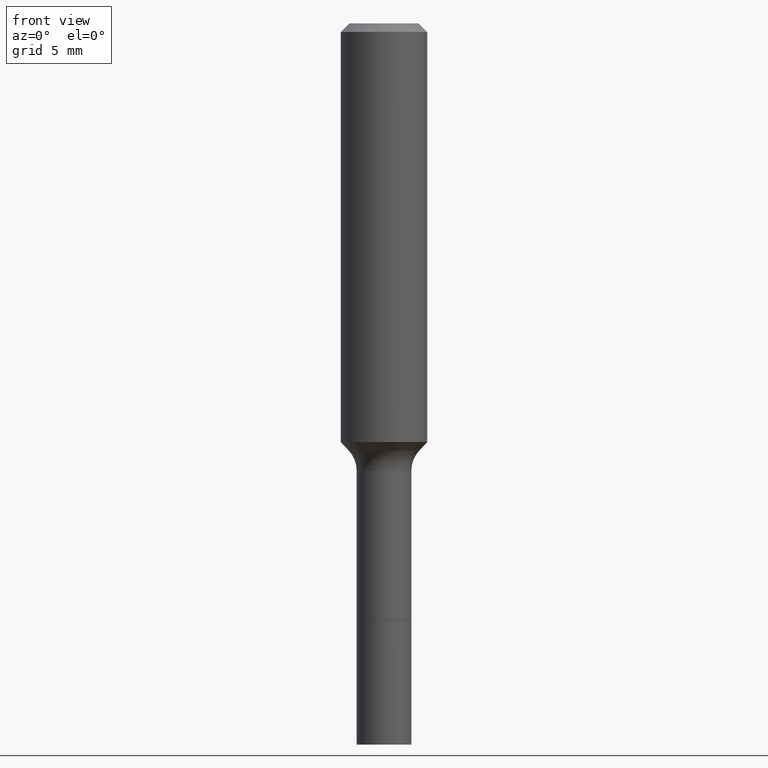
[diagram: clean part render]
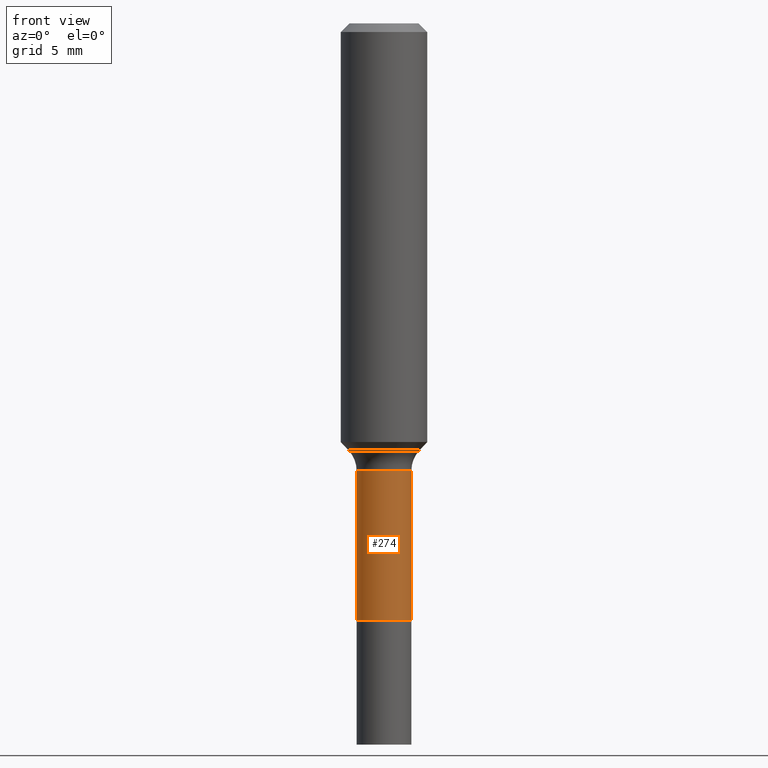
[diagram: same view with one face highlighted and labeled with its STEP entity id]
A machine part, front view. The second image highlights one B-rep face of the part: STEP entity #274.
In plain terms, the highlighted cylindrical surface (edge-blend (fillet) strip) has radius 1.8999 mm, axis along (-0, 0, 1).
Its self-contained STEP definition (entity closure, byte-faithful):
#1 = CARTESIAN_POINT ( 'NONE',  ( 3.983668685275588261E-29, -5.687623100975485819E-15, -1.629000000000000226 ) ) ;
#11 = ORIENTED_EDGE ( 'NONE', *, *, #31, .T. ) ;
#18 = AXIS2_PLACEMENT_3D ( 'NONE', #156, #464, #356 ) ;
#22 = CIRCLE ( 'NONE', #231, 0.07480000000000000537 ) ;
#31 = EDGE_CURVE ( 'NONE', #495, #232, #22, .T. ) ;
#35 = ORIENTED_EDGE ( 'NONE', *, *, #95, .T. ) ;
#44 = VERTEX_POINT ( 'NONE', #127 ) ;
#57 = CARTESIAN_POINT ( 'NONE',  ( 0.07479999999999997762, -5.223256082909326032E-16, 3.647380228295358762E-30 ) ) ;
#80 = CYLINDRICAL_SURFACE ( 'NONE', #416, 0.07479999999999997762 ) ;
#83 = DIRECTION ( 'NONE',  ( 1.000000000000000000, -6.982962677686261977E-15, 0.000000000000000000 ) ) ;
#85 = ORIENTED_EDGE ( 'NONE', *, *, #376, .F. ) ;
#89 = DIRECTION ( 'NONE',  ( -2.445468806185136597E-29, 3.491481338843145583E-15, 1.000000000000000000 ) ) ;
#95 = EDGE_CURVE ( 'NONE', #232, #434, #145, .T. ) ;
#112 = VECTOR ( 'NONE', #222, 39.37007874015748143 ) ;
#127 = CARTESIAN_POINT ( 'NONE',  ( -0.07479999999999994986, -4.443002071168217249E-15, -1.220499999999999918 ) ) ;
#144 = DIRECTION ( 'NONE',  ( -2.445468806185136877E-29, 3.491481338843145188E-15, 1.000000000000000000 ) ) ;
#145 = LINE ( 'NONE', #57, #112 ) ;
#156 = CARTESIAN_POINT ( 'NONE',  ( 2.984694677948959472E-29, -4.261352974058059028E-15, -1.220499999999999918 ) ) ;
#162 = DIRECTION ( 'NONE',  ( 1.000000000000000000, -6.982962677686266711E-15, 4.876176775795935793E-29 ) ) ;
#176 = CIRCLE ( 'NONE', #18, 0.07479999999999994986 ) ;
#222 = DIRECTION ( 'NONE',  ( -2.445468806185136877E-29, 3.491481338843145188E-15, 1.000000000000000000 ) ) ;
#231 = AXIS2_PLACEMENT_3D ( 'NONE', #1, #89, #83 ) ;
#232 = VERTEX_POINT ( 'NONE', #456 ) ;
#235 = CARTESIAN_POINT ( 'NONE',  ( -0.07480000000000000537, -4.443002071168216460E-15, -1.629000000000000226 ) ) ;
#274 = ADVANCED_FACE ( 'NONE', ( #351 ), #80, .T. ) ;
#279 = CARTESIAN_POINT ( 'NONE',  ( 0.000000000000000000, 0.000000000000000000, 0.000000000000000000 ) ) ;
#317 = VECTOR ( 'NONE', #144, 39.37007874015748143 ) ;
#350 = CARTESIAN_POINT ( 'NONE',  ( 0.07479999999999994986, -4.783678582348991828E-15, -1.220499999999999918 ) ) ;
#351 = FACE_OUTER_BOUND ( 'NONE', #372, .T. ) ;
#356 = DIRECTION ( 'NONE',  ( 1.000000000000000000, -6.982962677686266711E-15, 0.000000000000000000 ) ) ;
#367 = LINE ( 'NONE', #492, #317 ) ;
#372 = EDGE_LOOP ( 'NONE', ( #435, #11, #35, #85 ) ) ;
#376 = EDGE_CURVE ( 'NONE', #44, #434, #176, .T. ) ;
#407 = EDGE_CURVE ( 'NONE', #495, #44, #367, .T. ) ;
#416 = AXIS2_PLACEMENT_3D ( 'NONE', #279, #460, #162 ) ;
#434 = VERTEX_POINT ( 'NONE', #350 ) ;
#435 = ORIENTED_EDGE ( 'NONE', *, *, #407, .F. ) ;
#456 = CARTESIAN_POINT ( 'NONE',  ( 0.07480000000000000537, -6.209948709266417831E-15, -1.629000000000000226 ) ) ;
#460 = DIRECTION ( 'NONE',  ( -2.445468806185136597E-29, 3.491481338843145583E-15, 1.000000000000000000 ) ) ;
#464 = DIRECTION ( 'NONE',  ( -2.445468806185136597E-29, 3.491481338843145583E-15, 1.000000000000000000 ) ) ;
#492 = CARTESIAN_POINT ( 'NONE',  ( -0.07479999999999997762, 5.314859663485547800E-16, -3.679363447510668680E-30 ) ) ;
#495 = VERTEX_POINT ( 'NONE', #235 ) ;